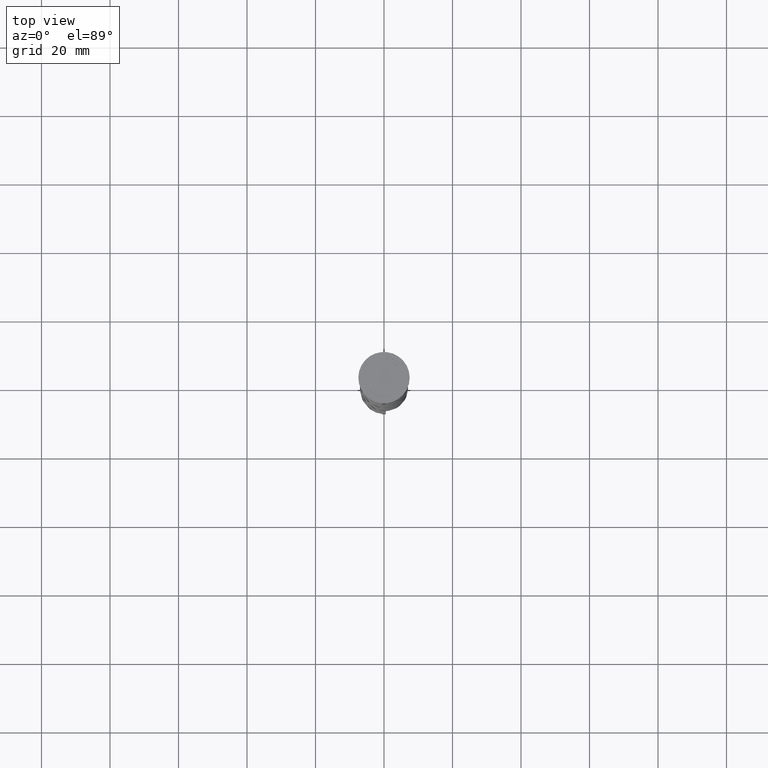
[diagram: clean part render]
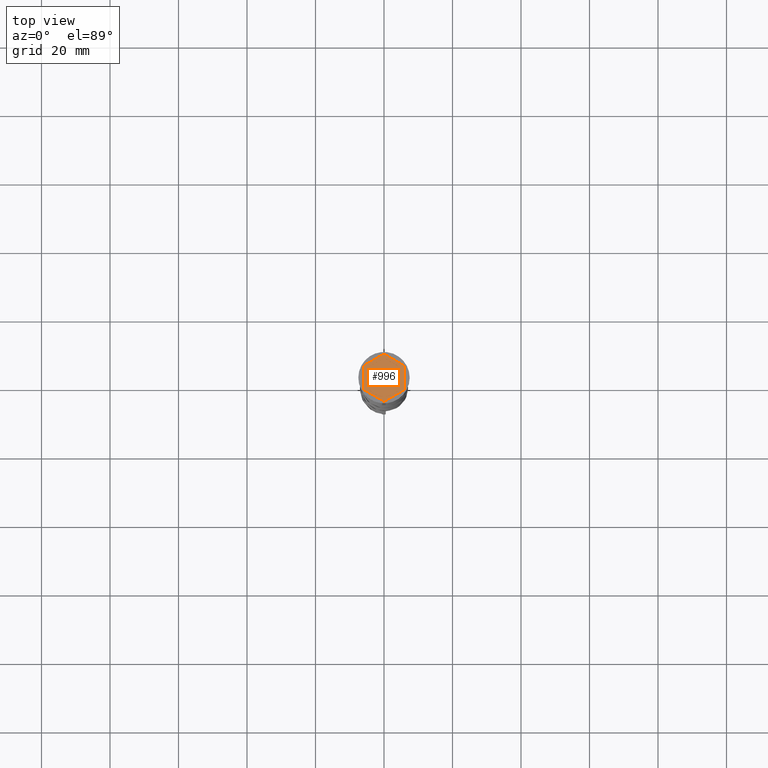
[diagram: same view with one face highlighted and labeled with its STEP entity id]
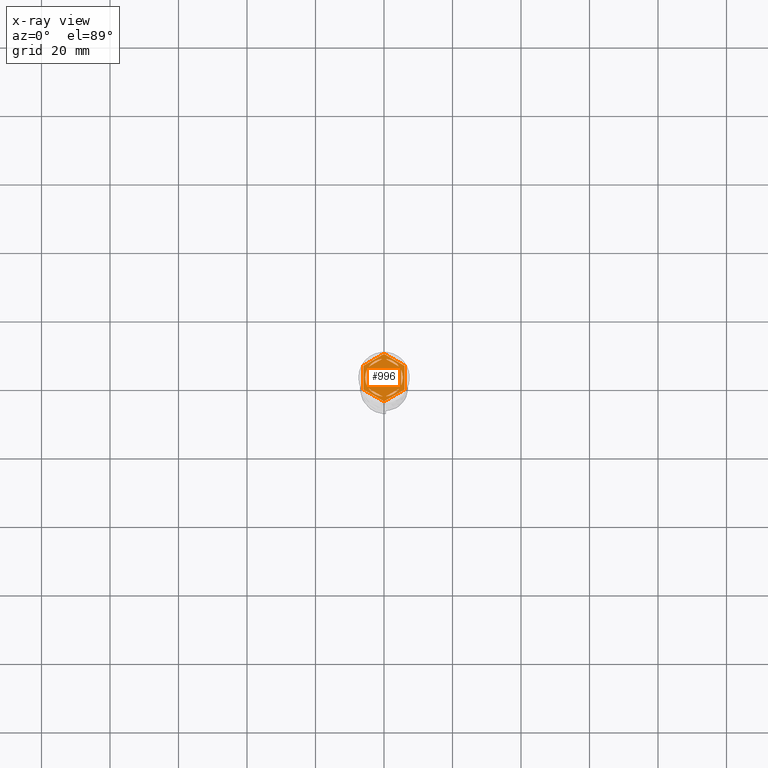
[diagram: x-ray of the same camera — body ghosted, the highlighted face saturated]
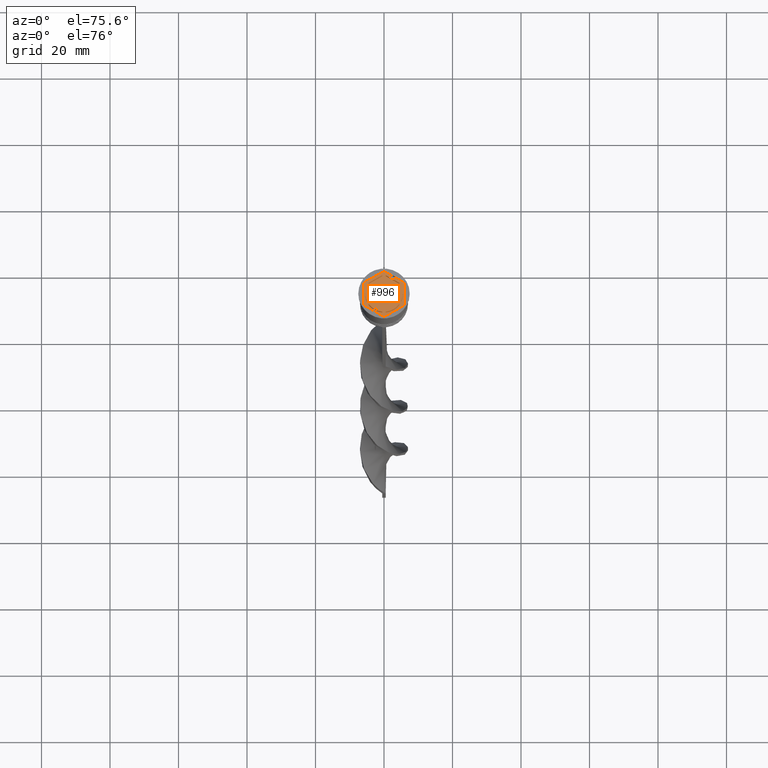
[diagram: same view with one face highlighted and labeled with its STEP entity id]
A machine part, top view. The second image highlights one B-rep face of the part: STEP entity #996.
The next image is the same camera in x-ray: the body ghosted, the highlighted face saturated — about 0% of this face is hidden behind the body in this view.
A second angle (auxiliary view) of the same face is appended — the face is thin or edge-on in the first view.
In plain terms, the highlighted planar face has unit normal (0, 0, 1).
Its self-contained STEP definition (entity closure, byte-faithful):
#46 = DIRECTION ( 'NONE',  ( 0.000000000000000000, 0.000000000000000000, 1.000000000000000000 ) ) ;
#62 = CARTESIAN_POINT ( 'NONE',  ( 0.000000000000000000, 0.000000000000000000, -1.000000000000000000 ) ) ;
#86 = CARTESIAN_POINT ( 'NONE',  ( -4.280685092543093048E-16, -6.928203230275507885, -1.000000000000000000 ) ) ;
#96 = CARTESIAN_POINT ( 'NONE',  ( 5.000000000000000888, 2.886751345948130876, -1.000000000000000888 ) ) ;
#139 = DIRECTION ( 'NONE',  ( -3.004629197474317076E-16, -1.000000000000000000, 0.000000000000000000 ) ) ;
#226 = DIRECTION ( 'NONE',  ( 2.503857664561932376E-16, 1.000000000000000000, 0.000000000000000000 ) ) ;
#228 = EDGE_CURVE ( 'NONE', #1889, #1727, #1591, .T. ) ;
#253 = EDGE_CURVE ( 'NONE', #1397, #2629, #2163, .T. ) ;
#282 = AXIS2_PLACEMENT_3D ( 'NONE', #62, #2407, #1202 ) ;
#283 = DIRECTION ( 'NONE',  ( 1.000000000000000000, 0.000000000000000000, -0.000000000000000000 ) ) ;
#291 = CARTESIAN_POINT ( 'NONE',  ( 0.000000000000000000, 0.000000000000000000, -1.000000000000000000 ) ) ;
#320 = EDGE_LOOP ( 'NONE', ( #666, #2758 ) ) ;
#335 = EDGE_CURVE ( 'NONE', #390, #1328, #3459, .T. ) ;
#368 = CARTESIAN_POINT ( 'NONE',  ( 0.5156865167015596274, 5.475770942661155161, -1.000000000000000888 ) ) ;
#389 = CARTESIAN_POINT ( 'NONE',  ( -5.000000000000000888, 2.291287847477921247, -1.000000000000000888 ) ) ;
#390 = VERTEX_POINT ( 'NONE', #819 ) ;
#412 = LINE ( 'NONE', #3051, #962 ) ;
#432 = FACE_BOUND ( 'NONE', #320, .T. ) ;
#503 = EDGE_LOOP ( 'NONE', ( #2991, #2403, #3322 ) ) ;
#544 = EDGE_CURVE ( 'NONE', #2155, #2048, #1826, .T. ) ;
#586 = VECTOR ( 'NONE', #139, 1000.000000000000000 ) ;
#634 = CARTESIAN_POINT ( 'NONE',  ( -0.5156865167015569629, 5.475770942661155161, -1.000000000000000888 ) ) ;
#649 = CARTESIAN_POINT ( 'NONE',  ( 6.000000000000000000, 3.464101615137753942, -1.000000000000000000 ) ) ;
#666 = ORIENTED_EDGE ( 'NONE', *, *, #2712, .F. ) ;
#708 = VECTOR ( 'NONE', #3320, 1000.000000000000000 ) ;
#714 = CARTESIAN_POINT ( 'NONE',  ( -5.500000000000001776, 0.000000000000000000, -1.000000000000000000 ) ) ;
#741 = ORIENTED_EDGE ( 'NONE', *, *, #253, .F. ) ;
#747 = EDGE_CURVE ( 'NONE', #2802, #1783, #412, .T. ) ;
#774 = DIRECTION ( 'NONE',  ( 0.000000000000000000, -1.000000000000000000, 0.000000000000000000 ) ) ;
#786 = VECTOR ( 'NONE', #3299, 1000.000000000000000 ) ;
#791 = VECTOR ( 'NONE', #774, 1000.000000000000000 ) ;
#810 = DIRECTION ( 'NONE',  ( 0.000000000000000000, 0.000000000000000000, 1.000000000000000000 ) ) ;
#815 = CARTESIAN_POINT ( 'NONE',  ( 0.000000000000000000, 6.928203230275506996, -1.000000000000000000 ) ) ;
#819 = CARTESIAN_POINT ( 'NONE',  ( -6.000000000000000000, -3.464101615137755719, -1.000000000000000000 ) ) ;
#826 = CARTESIAN_POINT ( 'NONE',  ( 4.484313483298442371, 3.184483095183238355, -1.000000000000000888 ) ) ;
#871 = CARTESIAN_POINT ( 'NONE',  ( 0.000000000000000000, 6.928203230275506996, -1.000000000000000000 ) ) ;
#878 = DIRECTION ( 'NONE',  ( 1.000000000000000000, 0.000000000000000000, 0.000000000000000000 ) ) ;
#906 = VECTOR ( 'NONE', #226, 1000.000000000000000 ) ;
#910 = CIRCLE ( 'NONE', #1918, 5.500000000000001776 ) ;
#912 = VECTOR ( 'NONE', #3381, 1000.000000000000000 ) ;
#962 = VECTOR ( 'NONE', #3638, 1000.000000000000000 ) ;
#966 = CARTESIAN_POINT ( 'NONE',  ( -4.484313483298445036, 3.184483095183233470, -1.000000000000000888 ) ) ;
#971 = VECTOR ( 'NONE', #2152, 1000.000000000000114 ) ;
#996 = ADVANCED_FACE ( 'NONE', ( #1917, #3124, #432, #1621, #1326, #2531, #3588 ), #3275, .T. ) ;
#1014 = CARTESIAN_POINT ( 'NONE',  ( -5.000000000000000888, 2.886751345948129099, -1.000000000000000888 ) ) ;
#1034 = CIRCLE ( 'NONE', #2801, 5.500000000000001776 ) ;
#1069 = DIRECTION ( 'NONE',  ( 0.000000000000000000, 0.000000000000000000, 1.000000000000000000 ) ) ;
#1116 = EDGE_CURVE ( 'NONE', #1783, #2010, #2633, .T. ) ;
#1122 = ORIENTED_EDGE ( 'NONE', *, *, #3493, .T. ) ;
#1158 = EDGE_CURVE ( 'NONE', #3554, #2802, #3238, .T. ) ;
#1174 = LINE ( 'NONE', #2373, #971 ) ;
#1186 = CARTESIAN_POINT ( 'NONE',  ( 5.999999999999998224, -3.464101615137753942, -1.000000000000000000 ) ) ;
#1197 = EDGE_LOOP ( 'NONE', ( #3800, #3617, #1122, #3523, #2588, #3732 ) ) ;
#1202 = DIRECTION ( 'NONE',  ( 1.000000000000000000, 0.000000000000000000, 0.000000000000000000 ) ) ;
#1283 = EDGE_CURVE ( 'NONE', #2048, #2155, #1976, .T. ) ;
#1318 = CARTESIAN_POINT ( 'NONE',  ( 0.000000000000000000, 0.000000000000000000, -1.000000000000000000 ) ) ;
#1326 = FACE_BOUND ( 'NONE', #503, .T. ) ;
#1328 = VERTEX_POINT ( 'NONE', #3665 ) ;
#1331 = EDGE_LOOP ( 'NONE', ( #2580, #1379 ) ) ;
#1362 = EDGE_CURVE ( 'NONE', #3309, #3306, #2477, .T. ) ;
#1378 = CARTESIAN_POINT ( 'NONE',  ( -6.000000000000000000, -3.464101615137755719, -1.000000000000000000 ) ) ;
#1379 = ORIENTED_EDGE ( 'NONE', *, *, #544, .F. ) ;
#1397 = VERTEX_POINT ( 'NONE', #368 ) ;
#1403 = VERTEX_POINT ( 'NONE', #634 ) ;
#1468 = DIRECTION ( 'NONE',  ( 0.000000000000000000, 0.000000000000000000, 1.000000000000000000 ) ) ;
#1550 = DIRECTION ( 'NONE',  ( 0.8660254037844385966, 0.5000000000000000000, 0.000000000000000000 ) ) ;
#1585 = ORIENTED_EDGE ( 'NONE', *, *, #1983, .F. ) ;
#1591 = LINE ( 'NONE', #2836, #586 ) ;
#1609 = EDGE_LOOP ( 'NONE', ( #3664, #741 ) ) ;
#1612 = VERTEX_POINT ( 'NONE', #1872 ) ;
#1621 = FACE_BOUND ( 'NONE', #1331, .T. ) ;
#1631 = CARTESIAN_POINT ( 'NONE',  ( 4.999999999999999112, -2.291287847477924355, -1.000000000000000888 ) ) ;
#1652 = VECTOR ( 'NONE', #2912, 1000.000000000000114 ) ;
#1709 = DIRECTION ( 'NONE',  ( 1.000000000000000000, 0.000000000000000000, 0.000000000000000000 ) ) ;
#1727 = VERTEX_POINT ( 'NONE', #1631 ) ;
#1729 = AXIS2_PLACEMENT_3D ( 'NONE', #1939, #1069, #3145 ) ;
#1783 = VERTEX_POINT ( 'NONE', #815 ) ;
#1826 = LINE ( 'NONE', #3303, #708 ) ;
#1850 = VECTOR ( 'NONE', #2031, 1000.000000000000227 ) ;
#1858 = EDGE_CURVE ( 'NONE', #2629, #1397, #1034, .T. ) ;
#1872 = CARTESIAN_POINT ( 'NONE',  ( 4.484313483298445036, -3.184483095183233026, -1.000000000000000888 ) ) ;
#1875 = DIRECTION ( 'NONE',  ( 0.000000000000000000, 0.000000000000000000, 1.000000000000000000 ) ) ;
#1889 = VERTEX_POINT ( 'NONE', #2733 ) ;
#1917 = FACE_BOUND ( 'NONE', #1609, .T. ) ;
#1918 = AXIS2_PLACEMENT_3D ( 'NONE', #2493, #46, #3045 ) ;
#1939 = CARTESIAN_POINT ( 'NONE',  ( 0.000000000000000000, 0.000000000000000000, -1.000000000000000000 ) ) ;
#1957 = CARTESIAN_POINT ( 'NONE',  ( 5.999999999999998224, -3.464101615137753942, -1.000000000000000000 ) ) ;
#1976 = CIRCLE ( 'NONE', #282, 5.500000000000001776 ) ;
#1983 = EDGE_CURVE ( 'NONE', #3714, #1403, #2967, .T. ) ;
#2010 = VERTEX_POINT ( 'NONE', #3556 ) ;
#2019 = DIRECTION ( 'NONE',  ( 0.000000000000000000, 0.000000000000000000, 1.000000000000000000 ) ) ;
#2031 = DIRECTION ( 'NONE',  ( -0.8660254037844385966, -0.4999999999999998890, 0.000000000000000000 ) ) ;
#2048 = VERTEX_POINT ( 'NONE', #3317 ) ;
#2099 = EDGE_CURVE ( 'NONE', #1727, #1889, #3490, .T. ) ;
#2101 = EDGE_CURVE ( 'NONE', #1612, #2933, #1174, .T. ) ;
#2102 = EDGE_LOOP ( 'NONE', ( #2501, #1585 ) ) ;
#2108 = CIRCLE ( 'NONE', #1729, 5.500000000000001776 ) ;
#2126 = EDGE_CURVE ( 'NONE', #3306, #2272, #910, .T. ) ;
#2152 = DIRECTION ( 'NONE',  ( -0.8660254037844387076, -0.4999999999999997224, 0.000000000000000000 ) ) ;
#2155 = VERTEX_POINT ( 'NONE', #2514 ) ;
#2163 = LINE ( 'NONE', #96, #2472 ) ;
#2182 = LINE ( 'NONE', #1014, #912 ) ;
#2219 = EDGE_CURVE ( 'NONE', #1328, #3554, #3354, .T. ) ;
#2272 = VERTEX_POINT ( 'NONE', #2773 ) ;
#2368 = CARTESIAN_POINT ( 'NONE',  ( 0.000000000000000000, 0.000000000000000000, -1.000000000000000000 ) ) ;
#2373 = CARTESIAN_POINT ( 'NONE',  ( -1.734723475976807094E-15, -5.773502691896258199, -1.000000000000000888 ) ) ;
#2403 = ORIENTED_EDGE ( 'NONE', *, *, #3043, .F. ) ;
#2407 = DIRECTION ( 'NONE',  ( 0.000000000000000000, 0.000000000000000000, 1.000000000000000000 ) ) ;
#2446 = EDGE_CURVE ( 'NONE', #1403, #3714, #2108, .T. ) ;
#2472 = VECTOR ( 'NONE', #3345, 1000.000000000000114 ) ;
#2477 = CIRCLE ( 'NONE', #2984, 5.500000000000001776 ) ;
#2493 = CARTESIAN_POINT ( 'NONE',  ( 0.000000000000000000, 0.000000000000000000, -1.000000000000000000 ) ) ;
#2501 = ORIENTED_EDGE ( 'NONE', *, *, #2446, .F. ) ;
#2514 = CARTESIAN_POINT ( 'NONE',  ( -0.5156865167015569629, -5.475770942661155161, -1.000000000000000888 ) ) ;
#2531 = FACE_BOUND ( 'NONE', #2102, .T. ) ;
#2580 = ORIENTED_EDGE ( 'NONE', *, *, #1283, .F. ) ;
#2588 = ORIENTED_EDGE ( 'NONE', *, *, #2219, .T. ) ;
#2629 = VERTEX_POINT ( 'NONE', #826 ) ;
#2633 = LINE ( 'NONE', #871, #1850 ) ;
#2638 = DIRECTION ( 'NONE',  ( 1.000000000000000000, 0.000000000000000000, 0.000000000000000000 ) ) ;
#2675 = CARTESIAN_POINT ( 'NONE',  ( 4.336808689942017736E-16, 5.773502691896259087, -1.000000000000000888 ) ) ;
#2689 = CARTESIAN_POINT ( 'NONE',  ( 0.5156865167015526330, -5.475770942661155161, -1.000000000000000888 ) ) ;
#2712 = EDGE_CURVE ( 'NONE', #2933, #1612, #2996, .T. ) ;
#2733 = CARTESIAN_POINT ( 'NONE',  ( 5.000000000000000888, 2.291287847477922135, -1.000000000000000888 ) ) ;
#2746 = AXIS2_PLACEMENT_3D ( 'NONE', #291, #1468, #878 ) ;
#2758 = ORIENTED_EDGE ( 'NONE', *, *, #2101, .F. ) ;
#2773 = CARTESIAN_POINT ( 'NONE',  ( -5.000000000000000888, -2.291287847477921247, -1.000000000000000888 ) ) ;
#2801 = AXIS2_PLACEMENT_3D ( 'NONE', #1318, #2019, #2638 ) ;
#2802 = VERTEX_POINT ( 'NONE', #649 ) ;
#2836 = CARTESIAN_POINT ( 'NONE',  ( 4.999999999999999112, -2.886751345948130432, -1.000000000000000888 ) ) ;
#2912 = DIRECTION ( 'NONE',  ( 0.8660254037844388186, -0.4999999999999997224, 0.000000000000000000 ) ) ;
#2918 = DIRECTION ( 'NONE',  ( 0.000000000000000000, 0.000000000000000000, 1.000000000000000000 ) ) ;
#2933 = VERTEX_POINT ( 'NONE', #2689 ) ;
#2967 = LINE ( 'NONE', #2675, #786 ) ;
#2984 = AXIS2_PLACEMENT_3D ( 'NONE', #3062, #1875, #3313 ) ;
#2991 = ORIENTED_EDGE ( 'NONE', *, *, #1362, .F. ) ;
#2996 = CIRCLE ( 'NONE', #3492, 5.500000000000001776 ) ;
#3043 = EDGE_CURVE ( 'NONE', #2272, #3309, #2182, .T. ) ;
#3045 = DIRECTION ( 'NONE',  ( 1.000000000000000000, 0.000000000000000000, 0.000000000000000000 ) ) ;
#3051 = CARTESIAN_POINT ( 'NONE',  ( 6.000000000000000000, 3.464101615137753942, -1.000000000000000000 ) ) ;
#3062 = CARTESIAN_POINT ( 'NONE',  ( 0.000000000000000000, 0.000000000000000000, -1.000000000000000000 ) ) ;
#3116 = VECTOR ( 'NONE', #1550, 1000.000000000000227 ) ;
#3124 = FACE_BOUND ( 'NONE', #3271, .T. ) ;
#3145 = DIRECTION ( 'NONE',  ( 1.000000000000000000, 0.000000000000000000, 0.000000000000000000 ) ) ;
#3236 = AXIS2_PLACEMENT_3D ( 'NONE', #2368, #810, #283 ) ;
#3238 = LINE ( 'NONE', #1186, #906 ) ;
#3256 = CARTESIAN_POINT ( 'NONE',  ( 0.000000000000000000, 0.000000000000000000, -1.000000000000000000 ) ) ;
#3271 = EDGE_LOOP ( 'NONE', ( #3564, #3476 ) ) ;
#3275 = PLANE ( 'NONE',  #3236 ) ;
#3299 = DIRECTION ( 'NONE',  ( 0.8660254037844385966, 0.5000000000000001110, -0.000000000000000000 ) ) ;
#3303 = CARTESIAN_POINT ( 'NONE',  ( -5.000000000000000888, -2.886751345948129099, -1.000000000000000888 ) ) ;
#3306 = VERTEX_POINT ( 'NONE', #714 ) ;
#3309 = VERTEX_POINT ( 'NONE', #389 ) ;
#3313 = DIRECTION ( 'NONE',  ( 1.000000000000000000, 0.000000000000000000, 0.000000000000000000 ) ) ;
#3317 = CARTESIAN_POINT ( 'NONE',  ( -4.484313483298445036, -3.184483095183233470, -1.000000000000000888 ) ) ;
#3320 = DIRECTION ( 'NONE',  ( -0.8660254037844385966, 0.5000000000000001110, 0.000000000000000000 ) ) ;
#3322 = ORIENTED_EDGE ( 'NONE', *, *, #2126, .F. ) ;
#3345 = DIRECTION ( 'NONE',  ( 0.8660254037844387076, -0.4999999999999998335, 0.000000000000000000 ) ) ;
#3354 = LINE ( 'NONE', #86, #3116 ) ;
#3381 = DIRECTION ( 'NONE',  ( 0.000000000000000000, 1.000000000000000000, 0.000000000000000000 ) ) ;
#3459 = LINE ( 'NONE', #1378, #1652 ) ;
#3476 = ORIENTED_EDGE ( 'NONE', *, *, #228, .F. ) ;
#3490 = CIRCLE ( 'NONE', #2746, 5.500000000000001776 ) ;
#3492 = AXIS2_PLACEMENT_3D ( 'NONE', #3256, #2918, #1709 ) ;
#3493 = EDGE_CURVE ( 'NONE', #2010, #390, #3788, .T. ) ;
#3523 = ORIENTED_EDGE ( 'NONE', *, *, #335, .T. ) ;
#3554 = VERTEX_POINT ( 'NONE', #1957 ) ;
#3556 = CARTESIAN_POINT ( 'NONE',  ( -6.000000000000000000, 3.464101615137752166, -1.000000000000000000 ) ) ;
#3564 = ORIENTED_EDGE ( 'NONE', *, *, #2099, .F. ) ;
#3588 = FACE_OUTER_BOUND ( 'NONE', #1197, .T. ) ;
#3617 = ORIENTED_EDGE ( 'NONE', *, *, #1116, .T. ) ;
#3638 = DIRECTION ( 'NONE',  ( -0.8660254037844387076, 0.4999999999999998335, 0.000000000000000000 ) ) ;
#3664 = ORIENTED_EDGE ( 'NONE', *, *, #1858, .F. ) ;
#3665 = CARTESIAN_POINT ( 'NONE',  ( -4.280685092543093048E-16, -6.928203230275507885, -1.000000000000000000 ) ) ;
#3714 = VERTEX_POINT ( 'NONE', #966 ) ;
#3732 = ORIENTED_EDGE ( 'NONE', *, *, #1158, .T. ) ;
#3788 = LINE ( 'NONE', #3810, #791 ) ;
#3800 = ORIENTED_EDGE ( 'NONE', *, *, #747, .T. ) ;
#3810 = CARTESIAN_POINT ( 'NONE',  ( -6.000000000000000000, 3.464101615137752166, -1.000000000000000000 ) ) ;